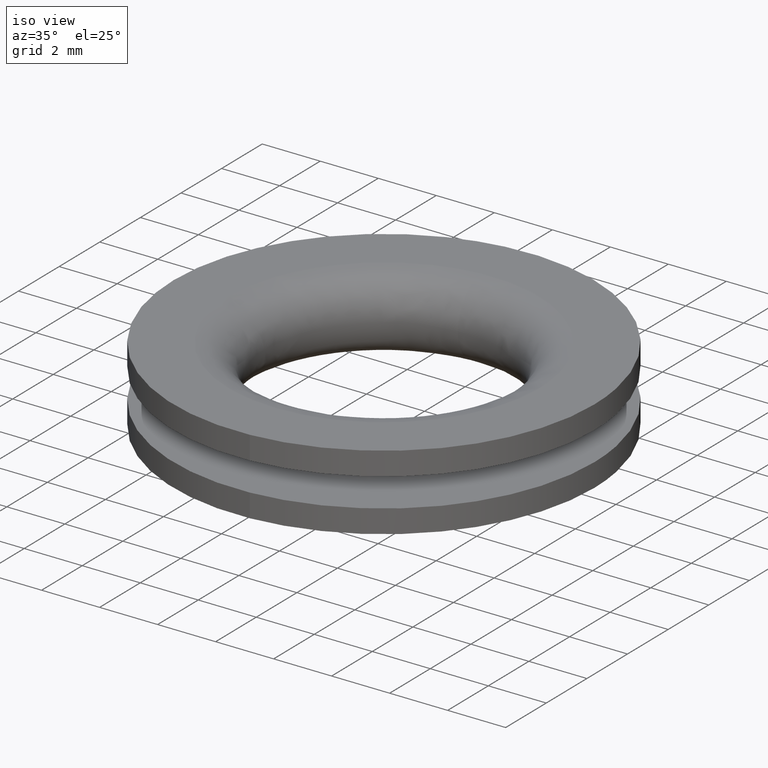
[diagram: clean part render]
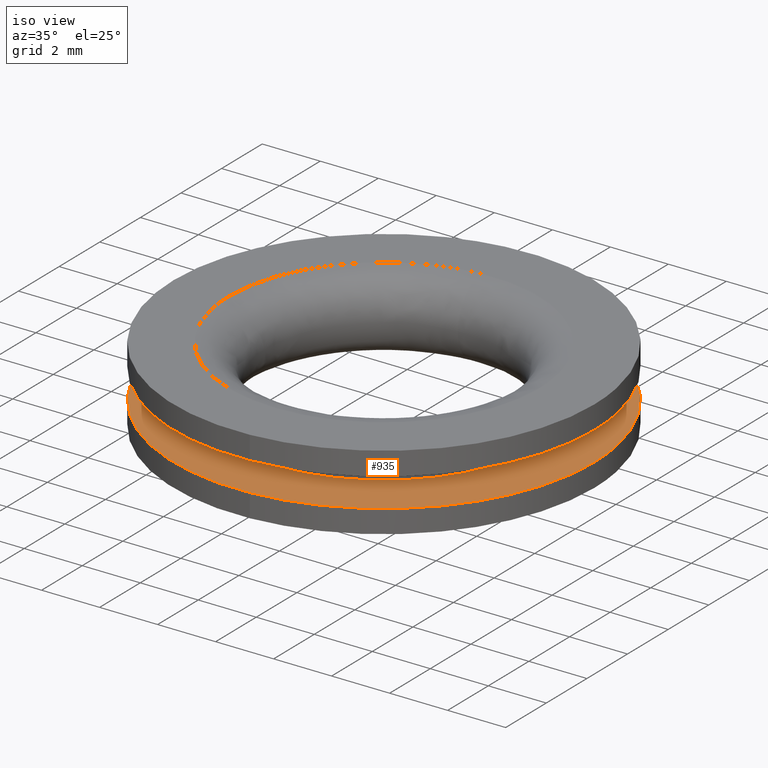
[diagram: same view with one face highlighted and labeled with its STEP entity id]
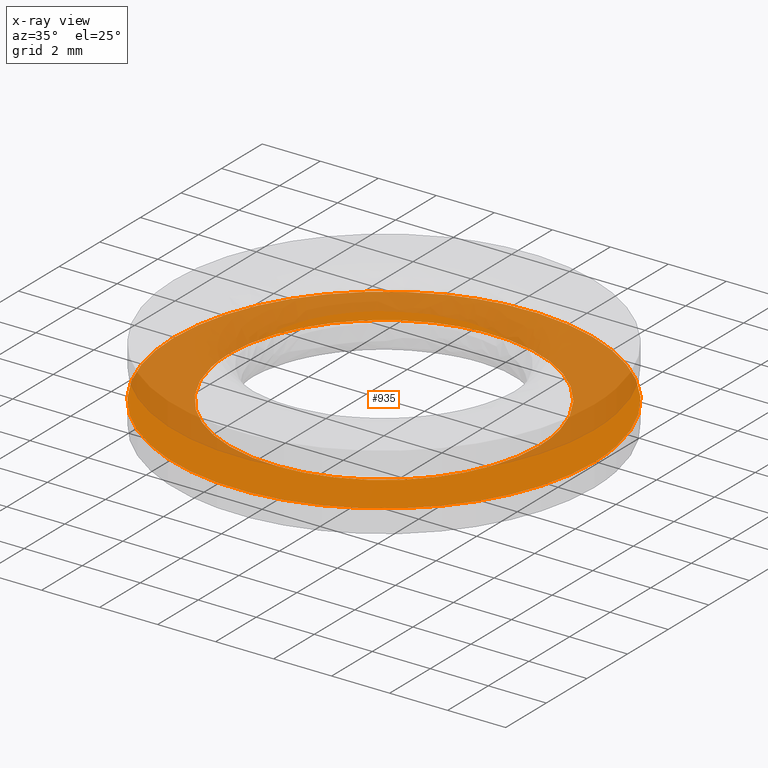
[diagram: x-ray of the same camera — body ghosted, the highlighted face saturated]
A machine part, iso view. The second image highlights one B-rep face of the part: STEP entity #935.
The next image is the same camera in x-ray: the body ghosted, the highlighted face saturated — about 56% of this face is hidden behind the body in this view.
In plain terms, the highlighted face is a freeform B-spline surface patch.
Its self-contained STEP definition (entity closure, byte-faithful):
#252=CARTESIAN_POINT('',(-0.855743500075938,7.199318617901104,0.799999999999926));
#253=VERTEX_POINT('',#252);
#254=CARTESIAN_POINT('',(7.249999000000000,0.0,0.799999999999990));
#255=VERTEX_POINT('',#254);
#256=CARTESIAN_POINT('',(-0.855743500075938,7.199318617901104,0.799999999999926));
#257=CARTESIAN_POINT('',(-0.429372492450539,7.249999000000001,0.799999999999990));
#258=CARTESIAN_POINT('',(0.0,7.249999000000000,0.799999999999990));
#259=CARTESIAN_POINT('',(7.249998999999999,7.249998999999999,0.799999999999990));
#260=CARTESIAN_POINT('',(7.249999000000000,0.0,0.799999999999990));
#268=(BOUNDED_CURVE()B_SPLINE_CURVE(2,(#256,#257,#258,#259,#260),.UNSPECIFIED.,.F.,.U.)B_SPLINE_CURVE_WITH_KNOTS((3,2,3),(0.229562581104653,0.250000000000000,0.500000000000000),.UNSPECIFIED.)CURVE()GEOMETRIC_REPRESENTATION_ITEM()RATIONAL_B_SPLINE_CURVE((0.956026965066855,0.976056074382012,1.0,0.707106781186547,1.0))REPRESENTATION_ITEM(''));
#269=EDGE_CURVE('',#253,#255,#268,.T.);
#271=CARTESIAN_POINT('',(0.442599261778933,-7.236476448760612,0.799999999999948));
#272=VERTEX_POINT('',#271);
#273=CARTESIAN_POINT('',(7.249999000000000,0.0,0.799999999999990));
#274=CARTESIAN_POINT('',(7.249998999999998,-6.820120488770804,0.799999999999990));
#275=CARTESIAN_POINT('',(0.442599261778933,-7.236476448760612,0.799999999999948));
#283=(BOUNDED_CURVE()B_SPLINE_CURVE(2,(#273,#274,#275),.UNSPECIFIED.,.F.,.U.)B_SPLINE_CURVE_WITH_KNOTS((3,3),(0.500000000000000,0.739333023969413),.UNSPECIFIED.)CURVE()GEOMETRIC_REPRESENTATION_ITEM()RATIONAL_B_SPLINE_CURVE((1.0,0.719603920964966,0.976072173966902))REPRESENTATION_ITEM(''));
#284=EDGE_CURVE('',#255,#272,#283,.T.);
#351=CARTESIAN_POINT('',(-7.249999000000000,0.0,0.799999999999990));
#352=VERTEX_POINT('',#351);
#353=CARTESIAN_POINT('',(-7.249999000000000,0.0,0.799999999999990));
#354=CARTESIAN_POINT('',(-7.249999000000001,6.439268553125745,0.799999999999990));
#355=CARTESIAN_POINT('',(-0.855743500075938,7.199318617901104,0.799999999999926));
#363=(BOUNDED_CURVE()B_SPLINE_CURVE(2,(#353,#354,#355),.UNSPECIFIED.,.F.,.U.)B_SPLINE_CURVE_WITH_KNOTS((3,3),(0.0,0.229562581104653),.UNSPECIFIED.)CURVE()GEOMETRIC_REPRESENTATION_ITEM()RATIONAL_B_SPLINE_CURVE((1.0,0.731050706804535,0.956026965066855))REPRESENTATION_ITEM(''));
#364=EDGE_CURVE('',#352,#253,#363,.T.);
#398=CARTESIAN_POINT('',(0.442599261778933,-7.236476448760612,0.799999999999948));
#399=CARTESIAN_POINT('',(0.221506205332549,-7.249999000000000,0.799999999999990));
#400=CARTESIAN_POINT('',(0.0,-7.249999000000000,0.799999999999990));
#401=CARTESIAN_POINT('',(-7.249998999999999,-7.249998999999999,0.799999999999990));
#402=CARTESIAN_POINT('',(-7.249999000000000,0.0,0.799999999999990));
#410=(BOUNDED_CURVE()B_SPLINE_CURVE(2,(#398,#399,#400,#401,#402),.UNSPECIFIED.,.F.,.U.)B_SPLINE_CURVE_WITH_KNOTS((3,2,3),(0.739333023969413,0.750000000000000,1.0),.UNSPECIFIED.)CURVE()GEOMETRIC_REPRESENTATION_ITEM()RATIONAL_B_SPLINE_CURVE((0.976072173966902,0.987502860221582,1.0,0.707106781186547,1.0))REPRESENTATION_ITEM(''));
#411=EDGE_CURVE('',#272,#352,#410,.T.);
#493=CARTESIAN_POINT('',(0.067228288247852,-5.349575586635289,0.799999999999995));
#494=VERTEX_POINT('',#493);
#510=CARTESIAN_POINT('',(5.349998000000000,0.0,0.799999999999990));
#511=VERTEX_POINT('',#510);
#512=CARTESIAN_POINT('',(5.349998000000000,0.0,0.799999999999990));
#513=CARTESIAN_POINT('',(5.349998000000000,-5.283186849972028,0.799999999999990));
#514=CARTESIAN_POINT('',(0.067228288247852,-5.349575586635289,0.799999999999995));
#522=(BOUNDED_CURVE()B_SPLINE_CURVE(2,(#512,#513,#514),.UNSPECIFIED.,.F.,.U.)B_SPLINE_CURVE_WITH_KNOTS((3,3),(0.500000000000000,0.747784295921454),.UNSPECIFIED.)CURVE()GEOMETRIC_REPRESENTATION_ITEM()RATIONAL_B_SPLINE_CURVE((1.0,0.709702639984561,0.994854295643381))REPRESENTATION_ITEM(''));
#523=EDGE_CURVE('',#511,#494,#522,.T.);
#525=CARTESIAN_POINT('',(-0.373072756460801,5.336974359902847,0.799999999999995));
#526=VERTEX_POINT('',#525);
#527=CARTESIAN_POINT('',(-0.373072756460801,5.336974359902848,0.799999999999995));
#528=CARTESIAN_POINT('',(-0.186763700111011,5.349998000000001,0.799999999999990));
#529=CARTESIAN_POINT('',(0.0,5.349998000000000,0.799999999999990));
#530=CARTESIAN_POINT('',(5.349998000000001,5.349998000000001,0.799999999999990));
#531=CARTESIAN_POINT('',(5.349998000000000,0.0,0.799999999999990));
#539=(BOUNDED_CURVE()B_SPLINE_CURVE(2,(#527,#528,#529,#530,#531),.UNSPECIFIED.,.F.,.U.)B_SPLINE_CURVE_WITH_KNOTS((3,2,3),(0.237833686535164,0.250000000000000,0.500000000000000),.UNSPECIFIED.)CURVE()GEOMETRIC_REPRESENTATION_ITEM()RATIONAL_B_SPLINE_CURVE((0.972879876387130,0.985746277152763,1.0,0.707106781186547,1.0))REPRESENTATION_ITEM(''));
#540=EDGE_CURVE('',#526,#511,#539,.T.);
#609=CARTESIAN_POINT('',(-5.349998000000000,0.0,0.799999999999990));
#610=VERTEX_POINT('',#609);
#611=CARTESIAN_POINT('',(-5.349998000000000,0.0,0.799999999999990));
#612=CARTESIAN_POINT('',(-5.349998000000000,4.989070267803588,0.799999999999990));
#613=CARTESIAN_POINT('',(-0.373072756460801,5.336974359902848,0.799999999999995));
#621=(BOUNDED_CURVE()B_SPLINE_CURVE(2,(#611,#612,#613),.UNSPECIFIED.,.F.,.U.)B_SPLINE_CURVE_WITH_KNOTS((3,3),(0.0,0.237833686535164),.UNSPECIFIED.)CURVE()GEOMETRIC_REPRESENTATION_ITEM()RATIONAL_B_SPLINE_CURVE((1.0,0.721360504033784,0.972879876387130))REPRESENTATION_ITEM(''));
#622=EDGE_CURVE('',#610,#526,#621,.T.);
#624=CARTESIAN_POINT('',(0.067228288247852,-5.349575586635289,0.799999999999995));
#625=CARTESIAN_POINT('',(0.033615471194233,-5.349998000000001,0.799999999999990));
#626=CARTESIAN_POINT('',(0.0,-5.349998000000000,0.799999999999990));
#627=CARTESIAN_POINT('',(-5.349998000000001,-5.349998000000001,0.799999999999990));
#628=CARTESIAN_POINT('',(-5.349998000000000,0.0,0.799999999999990));
#636=(BOUNDED_CURVE()B_SPLINE_CURVE(2,(#624,#625,#626,#627,#628),.UNSPECIFIED.,.F.,.U.)B_SPLINE_CURVE_WITH_KNOTS((3,2,3),(0.747784295921455,0.750000000000000,1.0),.UNSPECIFIED.)CURVE()GEOMETRIC_REPRESENTATION_ITEM()RATIONAL_B_SPLINE_CURVE((0.994854295643383,0.997404141201987,1.0,0.707106781186547,1.0))REPRESENTATION_ITEM(''));
#637=EDGE_CURVE('',#494,#610,#636,.T.);
#918=CARTESIAN_POINT('',(-7.974274008111798,-7.974097821811514,0.799999999999990));
#919=CARTESIAN_POINT('',(7.974274267391968,-7.974097821811514,0.799999999999990));
#920=CARTESIAN_POINT('',(-7.974274008111798,7.974142029080330,0.799999999999990));
#921=CARTESIAN_POINT('',(7.974274267391968,7.974142029080330,0.799999999999990));
#922=B_SPLINE_SURFACE_WITH_KNOTS('',1,1,((#918,#920),(#919,#921)),.UNSPECIFIED.,.F.,.F.,.U.,(2,2),(2,2),(0.0,15.948548275503761),(0.0,15.948239850891850),.UNSPECIFIED.);
#923=ORIENTED_EDGE('',*,*,#411,.F.);
#924=ORIENTED_EDGE('',*,*,#284,.F.);
#925=ORIENTED_EDGE('',*,*,#269,.F.);
#926=ORIENTED_EDGE('',*,*,#364,.F.);
#927=EDGE_LOOP('',(#923,#924,#925,#926));
#928=FACE_OUTER_BOUND('',#927,.T.);
#929=ORIENTED_EDGE('',*,*,#523,.T.);
#930=ORIENTED_EDGE('',*,*,#637,.T.);
#931=ORIENTED_EDGE('',*,*,#622,.T.);
#932=ORIENTED_EDGE('',*,*,#540,.T.);
#933=EDGE_LOOP('',(#929,#930,#931,#932));
#934=FACE_BOUND('',#933,.T.);
#935=ADVANCED_FACE('',(#928,#934),#922,.T.);